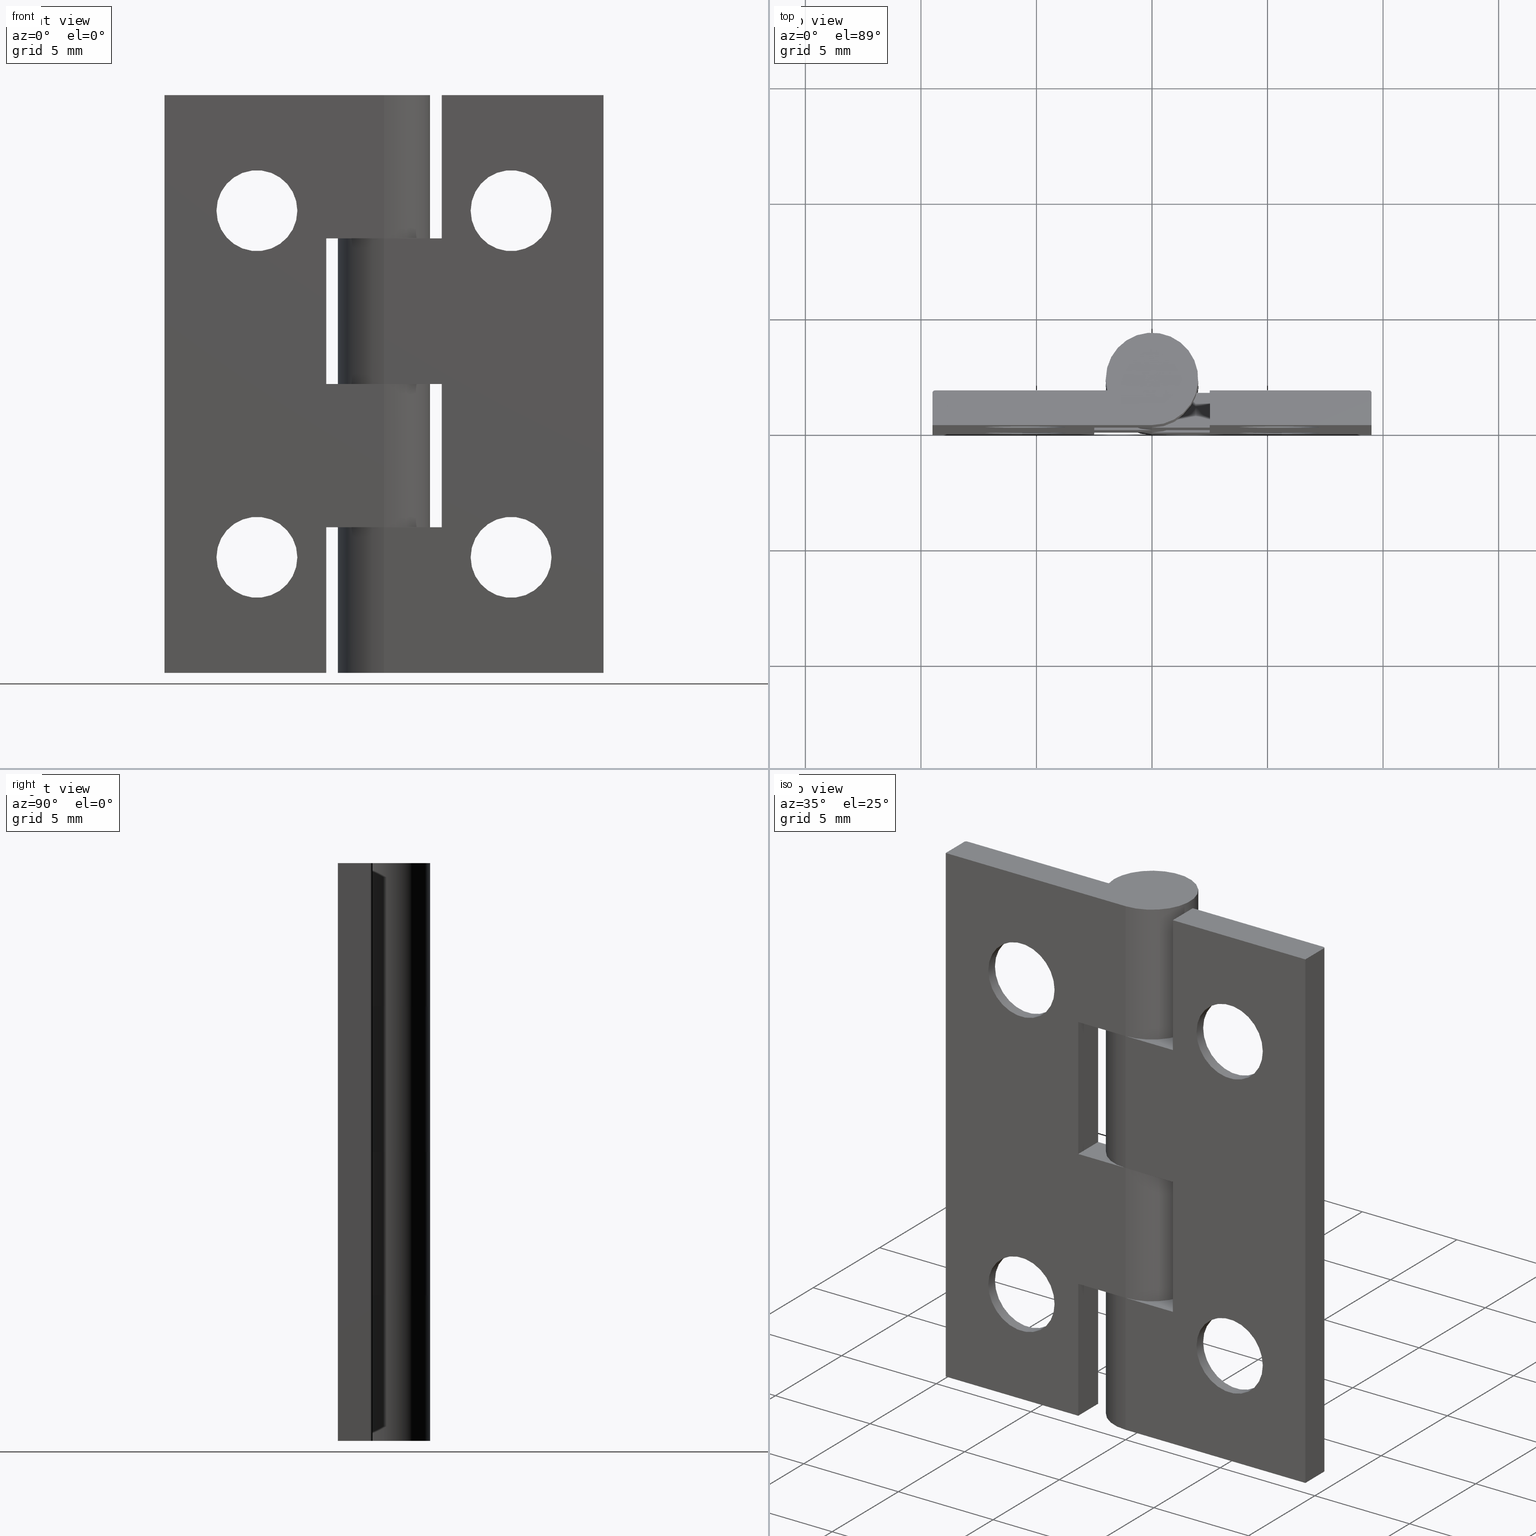
[diagram: canonical four-view strip — front | top / right | iso, engineering-drawing reading convention]
A machine part, canonical four-view strip (front | top / right | iso — engineering-drawing reading convention). The complete STEP part file that produces these views, byte-faithful:
ISO-10303-21;
HEADER;
/* Generated by software containing ST-Developer
 * from STEP Tools, Inc. (www.steptools.com) 
 */

FILE_DESCRIPTION(
/* description */ (''),
/* implementation_level */ '2;1');

FILE_NAME(
/* name */ '\\\\SYNOLOGYNAS\\web\\db2\\HB2519-15\\\X2\B3C4BA74\X0\\\HB
2519-15.stp',
/* time_stamp */ '2024-06-21T09:51:55+09:00',
/* author */ ('user'),
/* organization */ (''),
/* preprocessor_version */ 'ST-DEVELOPER v15.6',
/* originating_system */ 'Autodesk Inventor 2015',
/* authorisation */ '');

FILE_SCHEMA (('AUTOMOTIVE_DESIGN { 1 0 10303 214 3 1 1 }'));
ENDSEC;

DATA;
#10=MECHANICAL_DESIGN_GEOMETRIC_PRESENTATION_REPRESENTATION('',(#31,#29,
#30),#1243);
#11=ITEM_DEFINED_TRANSFORMATION($,$,#732,#811);
#12=ITEM_DEFINED_TRANSFORMATION($,$,#768,#812);
#13=ITEM_DEFINED_TRANSFORMATION($,$,#804,#813);
#14=(
REPRESENTATION_RELATIONSHIP($,$,#1261,#1264)
REPRESENTATION_RELATIONSHIP_WITH_TRANSFORMATION(#11)
SHAPE_REPRESENTATION_RELATIONSHIP()
);
#15=(
REPRESENTATION_RELATIONSHIP($,$,#1262,#1264)
REPRESENTATION_RELATIONSHIP_WITH_TRANSFORMATION(#12)
SHAPE_REPRESENTATION_RELATIONSHIP()
);
#16=(
REPRESENTATION_RELATIONSHIP($,$,#1263,#1264)
REPRESENTATION_RELATIONSHIP_WITH_TRANSFORMATION(#13)
SHAPE_REPRESENTATION_RELATIONSHIP()
);
#17=CONTEXT_DEPENDENT_SHAPE_REPRESENTATION(#14,#1258);
#18=CONTEXT_DEPENDENT_SHAPE_REPRESENTATION(#15,#1259);
#19=CONTEXT_DEPENDENT_SHAPE_REPRESENTATION(#16,#1260);
#20=NEXT_ASSEMBLY_USAGE_OCCURRENCE('HB2519-15_L:1',$,$,#1269,#1266,$);
#21=NEXT_ASSEMBLY_USAGE_OCCURRENCE('HB2519-15_R:1',$,$,#1269,#1267,$);
#22=NEXT_ASSEMBLY_USAGE_OCCURRENCE('HB2519-15_RING:1',$,$,#1269,#1268,$);
#23=SHAPE_REPRESENTATION_RELATIONSHIP('SRR','None',#1261,#26);
#24=SHAPE_REPRESENTATION_RELATIONSHIP('SRR','None',#1262,#27);
#25=SHAPE_REPRESENTATION_RELATIONSHIP('SRR','None',#1263,#28);
#26=ADVANCED_BREP_SHAPE_REPRESENTATION($,(#32),#1239);
#27=ADVANCED_BREP_SHAPE_REPRESENTATION($,(#33),#1240);
#28=ADVANCED_BREP_SHAPE_REPRESENTATION($,(#34),#1241);
#29=STYLED_ITEM('',(#1285),#32);
#30=STYLED_ITEM('',(#1286),#33);
#31=STYLED_ITEM('',(#1287),#34);
#32=MANIFOLD_SOLID_BREP('\X2\C194B9ACB4DC\X0\1',#729);
#33=MANIFOLD_SOLID_BREP('\X2\C194B9ACB4DC\X0\1',#730);
#34=MANIFOLD_SOLID_BREP('\X2\C194B9ACB4DC\X0\1',#731);
#35=CONICAL_SURFACE('',#755,2.25,45.);
#36=CONICAL_SURFACE('',#759,2.25,45.);
#37=CONICAL_SURFACE('',#794,2.25,45.);
#38=CONICAL_SURFACE('',#797,2.25,45.);
#39=CYLINDRICAL_SURFACE('',#747,2.);
#40=CYLINDRICAL_SURFACE('',#749,2.);
#41=CYLINDRICAL_SURFACE('',#750,0.75);
#42=CYLINDRICAL_SURFACE('',#751,0.1);
#43=CYLINDRICAL_SURFACE('',#757,1.75);
#44=CYLINDRICAL_SURFACE('',#761,1.75);
#45=CYLINDRICAL_SURFACE('',#763,0.75);
#46=CYLINDRICAL_SURFACE('',#769,0.1);
#47=CYLINDRICAL_SURFACE('',#788,2.);
#48=CYLINDRICAL_SURFACE('',#793,0.75);
#49=CYLINDRICAL_SURFACE('',#796,1.75);
#50=CYLINDRICAL_SURFACE('',#799,1.75);
#51=CYLINDRICAL_SURFACE('',#800,0.75);
#52=CYLINDRICAL_SURFACE('',#803,2.);
#53=CYLINDRICAL_SURFACE('',#807,0.75);
#54=FACE_BOUND('',#160,.T.);
#55=FACE_BOUND('',#162,.T.);
#56=FACE_BOUND('',#164,.T.);
#57=FACE_BOUND('',#167,.T.);
#58=FACE_BOUND('',#168,.T.);
#59=FACE_BOUND('',#172,.T.);
#60=FACE_BOUND('',#176,.T.);
#61=FACE_BOUND('',#178,.T.);
#62=FACE_BOUND('',#180,.T.);
#63=FACE_BOUND('',#182,.T.);
#64=FACE_BOUND('',#184,.T.);
#65=FACE_BOUND('',#186,.T.);
#66=FACE_BOUND('',#187,.T.);
#67=FACE_BOUND('',#190,.T.);
#68=FACE_BOUND('',#196,.T.);
#69=FACE_BOUND('',#198,.T.);
#70=FACE_BOUND('',#200,.T.);
#71=FACE_BOUND('',#203,.T.);
#72=FACE_BOUND('',#204,.T.);
#73=FACE_BOUND('',#207,.T.);
#74=FACE_BOUND('',#208,.T.);
#75=FACE_BOUND('',#210,.T.);
#76=FACE_BOUND('',#212,.T.);
#77=FACE_BOUND('',#214,.T.);
#78=FACE_BOUND('',#216,.T.);
#79=FACE_BOUND('',#218,.T.);
#80=FACE_BOUND('',#220,.T.);
#81=FACE_BOUND('',#222,.T.);
#82=FACE_BOUND('',#226,.T.);
#83=CIRCLE('',#735,2.);
#84=CIRCLE('',#736,0.75);
#85=CIRCLE('',#738,2.);
#86=CIRCLE('',#739,0.75);
#87=CIRCLE('',#741,2.);
#88=CIRCLE('',#742,0.75);
#89=CIRCLE('',#745,2.75);
#90=CIRCLE('',#746,2.75);
#91=CIRCLE('',#748,2.);
#92=CIRCLE('',#752,0.1);
#93=CIRCLE('',#753,0.1);
#94=CIRCLE('',#756,1.75);
#95=CIRCLE('',#758,1.75);
#96=CIRCLE('',#760,1.75);
#97=CIRCLE('',#762,1.75);
#98=CIRCLE('',#764,0.75);
#99=CIRCLE('',#770,0.1);
#100=CIRCLE('',#771,0.1);
#101=CIRCLE('',#776,2.);
#102=CIRCLE('',#777,0.75);
#103=CIRCLE('',#779,2.);
#104=CIRCLE('',#780,0.75);
#105=CIRCLE('',#782,2.);
#106=CIRCLE('',#783,0.75);
#107=CIRCLE('',#786,2.75);
#108=CIRCLE('',#787,2.75);
#109=CIRCLE('',#789,2.);
#110=CIRCLE('',#791,1.75);
#111=CIRCLE('',#792,1.75);
#112=CIRCLE('',#795,1.75);
#113=CIRCLE('',#798,1.75);
#114=CIRCLE('',#801,0.75);
#115=CIRCLE('',#806,0.75);
#116=CIRCLE('',#808,0.75);
#117=FACE_OUTER_BOUND('',#158,.T.);
#118=FACE_OUTER_BOUND('',#159,.T.);
#119=FACE_OUTER_BOUND('',#161,.T.);
#120=FACE_OUTER_BOUND('',#163,.T.);
#121=FACE_OUTER_BOUND('',#165,.T.);
#122=FACE_OUTER_BOUND('',#166,.T.);
#123=FACE_OUTER_BOUND('',#169,.T.);
#124=FACE_OUTER_BOUND('',#170,.T.);
#125=FACE_OUTER_BOUND('',#171,.T.);
#126=FACE_OUTER_BOUND('',#173,.T.);
#127=FACE_OUTER_BOUND('',#174,.T.);
#128=FACE_OUTER_BOUND('',#175,.T.);
#129=FACE_OUTER_BOUND('',#177,.T.);
#130=FACE_OUTER_BOUND('',#179,.T.);
#131=FACE_OUTER_BOUND('',#181,.T.);
#132=FACE_OUTER_BOUND('',#183,.T.);
#133=FACE_OUTER_BOUND('',#185,.T.);
#134=FACE_OUTER_BOUND('',#188,.T.);
#135=FACE_OUTER_BOUND('',#189,.T.);
#136=FACE_OUTER_BOUND('',#191,.T.);
#137=FACE_OUTER_BOUND('',#192,.T.);
#138=FACE_OUTER_BOUND('',#193,.T.);
#139=FACE_OUTER_BOUND('',#194,.T.);
#140=FACE_OUTER_BOUND('',#195,.T.);
#141=FACE_OUTER_BOUND('',#197,.T.);
#142=FACE_OUTER_BOUND('',#199,.T.);
#143=FACE_OUTER_BOUND('',#201,.T.);
#144=FACE_OUTER_BOUND('',#202,.T.);
#145=FACE_OUTER_BOUND('',#205,.T.);
#146=FACE_OUTER_BOUND('',#206,.T.);
#147=FACE_OUTER_BOUND('',#209,.T.);
#148=FACE_OUTER_BOUND('',#211,.T.);
#149=FACE_OUTER_BOUND('',#213,.T.);
#150=FACE_OUTER_BOUND('',#215,.T.);
#151=FACE_OUTER_BOUND('',#217,.T.);
#152=FACE_OUTER_BOUND('',#219,.T.);
#153=FACE_OUTER_BOUND('',#221,.T.);
#154=FACE_OUTER_BOUND('',#223,.T.);
#155=FACE_OUTER_BOUND('',#224,.T.);
#156=FACE_OUTER_BOUND('',#225,.T.);
#157=FACE_OUTER_BOUND('',#227,.T.);
#158=EDGE_LOOP('',(#490,#491,#492,#493));
#159=EDGE_LOOP('',(#494,#495,#496,#497));
#160=EDGE_LOOP('',(#498));
#161=EDGE_LOOP('',(#499,#500,#501,#502));
#162=EDGE_LOOP('',(#503));
#163=EDGE_LOOP('',(#504,#505,#506,#507));
#164=EDGE_LOOP('',(#508));
#165=EDGE_LOOP('',(#509,#510,#511,#512));
#166=EDGE_LOOP('',(#513,#514,#515,#516,#517,#518,#519,#520,#521,#522));
#167=EDGE_LOOP('',(#523));
#168=EDGE_LOOP('',(#524));
#169=EDGE_LOOP('',(#525,#526,#527,#528));
#170=EDGE_LOOP('',(#529,#530,#531,#532));
#171=EDGE_LOOP('',(#533));
#172=EDGE_LOOP('',(#534));
#173=EDGE_LOOP('',(#535,#536,#537,#538));
#174=EDGE_LOOP('',(#539,#540,#541,#542,#543));
#175=EDGE_LOOP('',(#544));
#176=EDGE_LOOP('',(#545));
#177=EDGE_LOOP('',(#546));
#178=EDGE_LOOP('',(#547));
#179=EDGE_LOOP('',(#548));
#180=EDGE_LOOP('',(#549));
#181=EDGE_LOOP('',(#550));
#182=EDGE_LOOP('',(#551));
#183=EDGE_LOOP('',(#552));
#184=EDGE_LOOP('',(#553));
#185=EDGE_LOOP('',(#554,#555,#556,#557,#558,#559,#560,#561,#562,#563));
#186=EDGE_LOOP('',(#564));
#187=EDGE_LOOP('',(#565));
#188=EDGE_LOOP('',(#566,#567,#568,#569));
#189=EDGE_LOOP('',(#570,#571,#572,#573,#574));
#190=EDGE_LOOP('',(#575));
#191=EDGE_LOOP('',(#576,#577,#578,#579));
#192=EDGE_LOOP('',(#580,#581,#582,#583));
#193=EDGE_LOOP('',(#584,#585,#586,#587,#588));
#194=EDGE_LOOP('',(#589,#590,#591,#592));
#195=EDGE_LOOP('',(#593,#594,#595,#596));
#196=EDGE_LOOP('',(#597));
#197=EDGE_LOOP('',(#598,#599,#600,#601));
#198=EDGE_LOOP('',(#602));
#199=EDGE_LOOP('',(#603,#604,#605,#606));
#200=EDGE_LOOP('',(#607));
#201=EDGE_LOOP('',(#608,#609,#610,#611));
#202=EDGE_LOOP('',(#612,#613,#614,#615,#616,#617,#618,#619,#620,#621));
#203=EDGE_LOOP('',(#622));
#204=EDGE_LOOP('',(#623));
#205=EDGE_LOOP('',(#624,#625,#626,#627));
#206=EDGE_LOOP('',(#628,#629,#630,#631,#632,#633,#634,#635,#636,#637));
#207=EDGE_LOOP('',(#638));
#208=EDGE_LOOP('',(#639));
#209=EDGE_LOOP('',(#640));
#210=EDGE_LOOP('',(#641));
#211=EDGE_LOOP('',(#642));
#212=EDGE_LOOP('',(#643));
#213=EDGE_LOOP('',(#644));
#214=EDGE_LOOP('',(#645));
#215=EDGE_LOOP('',(#646));
#216=EDGE_LOOP('',(#647));
#217=EDGE_LOOP('',(#648));
#218=EDGE_LOOP('',(#649));
#219=EDGE_LOOP('',(#650));
#220=EDGE_LOOP('',(#651));
#221=EDGE_LOOP('',(#652,#653,#654,#655,#656));
#222=EDGE_LOOP('',(#657));
#223=EDGE_LOOP('',(#658,#659,#660,#661));
#224=EDGE_LOOP('',(#662));
#225=EDGE_LOOP('',(#663));
#226=EDGE_LOOP('',(#664));
#227=EDGE_LOOP('',(#665));
#228=LINE('',#1036,#282);
#229=LINE('',#1038,#283);
#230=LINE('',#1040,#284);
#231=LINE('',#1041,#285);
#232=LINE('',#1046,#286);
#233=LINE('',#1047,#287);
#234=LINE('',#1053,#288);
#235=LINE('',#1055,#289);
#236=LINE('',#1057,#290);
#237=LINE('',#1064,#291);
#238=LINE('',#1068,#292);
#239=LINE('',#1069,#293);
#240=LINE('',#1073,#294);
#241=LINE('',#1074,#295);
#242=LINE('',#1077,#296);
#243=LINE('',#1079,#297);
#244=LINE('',#1081,#298);
#245=LINE('',#1082,#299);
#246=LINE('',#1083,#300);
#247=LINE('',#1091,#301);
#248=LINE('',#1093,#302);
#249=LINE('',#1100,#303);
#250=LINE('',#1103,#304);
#251=LINE('',#1104,#305);
#252=LINE('',#1122,#306);
#253=LINE('',#1123,#307);
#254=LINE('',#1125,#308);
#255=LINE('',#1133,#309);
#256=LINE('',#1136,#310);
#257=LINE('',#1139,#311);
#258=LINE('',#1141,#312);
#259=LINE('',#1142,#313);
#260=LINE('',#1145,#314);
#261=LINE('',#1147,#315);
#262=LINE('',#1148,#316);
#263=LINE('',#1151,#317);
#264=LINE('',#1153,#318);
#265=LINE('',#1154,#319);
#266=LINE('',#1157,#320);
#267=LINE('',#1160,#321);
#268=LINE('',#1166,#322);
#269=LINE('',#1168,#323);
#270=LINE('',#1170,#324);
#271=LINE('',#1177,#325);
#272=LINE('',#1181,#326);
#273=LINE('',#1182,#327);
#274=LINE('',#1186,#328);
#275=LINE('',#1187,#329);
#276=LINE('',#1190,#330);
#277=LINE('',#1191,#331);
#278=LINE('',#1192,#332);
#279=LINE('',#1200,#333);
#280=LINE('',#1202,#334);
#281=LINE('',#1203,#335);
#282=VECTOR('',#818,6.3);
#283=VECTOR('',#819,1.5);
#284=VECTOR('',#820,6.30000000000001);
#285=VECTOR('',#821,1.5);
#286=VECTOR('',#826,2.5);
#287=VECTOR('',#827,0.563508326896291);
#288=VECTOR('',#832,0.563508326896296);
#289=VECTOR('',#833,1.5);
#290=VECTOR('',#834,2.5);
#291=VECTOR('',#841,0.563508326896294);
#292=VECTOR('',#844,2.5);
#293=VECTOR('',#845,1.5);
#294=VECTOR('',#850,6.3);
#295=VECTOR('',#851,6.3);
#296=VECTOR('',#854,6.9);
#297=VECTOR('',#855,25.);
#298=VECTOR('',#856,7.46350832689629);
#299=VECTOR('',#857,6.2);
#300=VECTOR('',#858,6.2);
#301=VECTOR('',#867,6.2);
#302=VECTOR('',#870,6.2);
#303=VECTOR('',#879,25.);
#304=VECTOR('',#882,7.);
#305=VECTOR('',#883,1.4);
#306=VECTOR('',#906,9.5);
#307=VECTOR('',#907,25.);
#308=VECTOR('',#910,1.4);
#309=VECTOR('',#919,25.);
#310=VECTOR('',#922,25.);
#311=VECTOR('',#925,1.4);
#312=VECTOR('',#926,25.);
#313=VECTOR('',#927,1.4);
#314=VECTOR('',#930,6.9);
#315=VECTOR('',#931,1.5);
#316=VECTOR('',#932,7.);
#317=VECTOR('',#935,6.2);
#318=VECTOR('',#936,1.5);
#319=VECTOR('',#937,6.2);
#320=VECTOR('',#940,0.563508326896295);
#321=VECTOR('',#943,2.5);
#322=VECTOR('',#948,0.563508326896294);
#323=VECTOR('',#949,1.5);
#324=VECTOR('',#950,2.5);
#325=VECTOR('',#957,0.563508326896293);
#326=VECTOR('',#960,2.5);
#327=VECTOR('',#961,1.5);
#328=VECTOR('',#966,6.2);
#329=VECTOR('',#967,6.2);
#330=VECTOR('',#970,7.4635083268963);
#331=VECTOR('',#971,6.3);
#332=VECTOR('',#972,6.3);
#333=VECTOR('',#981,6.3);
#334=VECTOR('',#984,6.3);
#335=VECTOR('',#985,9.5);
#336=VERTEX_POINT('',#1034);
#337=VERTEX_POINT('',#1035);
#338=VERTEX_POINT('',#1037);
#339=VERTEX_POINT('',#1039);
#340=VERTEX_POINT('',#1043);
#341=VERTEX_POINT('',#1044);
#342=VERTEX_POINT('',#1048);
#343=VERTEX_POINT('',#1051);
#344=VERTEX_POINT('',#1052);
#345=VERTEX_POINT('',#1054);
#346=VERTEX_POINT('',#1056);
#347=VERTEX_POINT('',#1059);
#348=VERTEX_POINT('',#1062);
#349=VERTEX_POINT('',#1063);
#350=VERTEX_POINT('',#1065);
#351=VERTEX_POINT('',#1067);
#352=VERTEX_POINT('',#1070);
#353=VERTEX_POINT('',#1076);
#354=VERTEX_POINT('',#1078);
#355=VERTEX_POINT('',#1080);
#356=VERTEX_POINT('',#1084);
#357=VERTEX_POINT('',#1086);
#358=VERTEX_POINT('',#1089);
#359=VERTEX_POINT('',#1096);
#360=VERTEX_POINT('',#1098);
#361=VERTEX_POINT('',#1102);
#362=VERTEX_POINT('',#1106);
#363=VERTEX_POINT('',#1109);
#364=VERTEX_POINT('',#1112);
#365=VERTEX_POINT('',#1115);
#366=VERTEX_POINT('',#1118);
#367=VERTEX_POINT('',#1121);
#368=VERTEX_POINT('',#1129);
#369=VERTEX_POINT('',#1130);
#370=VERTEX_POINT('',#1132);
#371=VERTEX_POINT('',#1134);
#372=VERTEX_POINT('',#1138);
#373=VERTEX_POINT('',#1140);
#374=VERTEX_POINT('',#1144);
#375=VERTEX_POINT('',#1146);
#376=VERTEX_POINT('',#1150);
#377=VERTEX_POINT('',#1152);
#378=VERTEX_POINT('',#1156);
#379=VERTEX_POINT('',#1158);
#380=VERTEX_POINT('',#1161);
#381=VERTEX_POINT('',#1164);
#382=VERTEX_POINT('',#1165);
#383=VERTEX_POINT('',#1167);
#384=VERTEX_POINT('',#1169);
#385=VERTEX_POINT('',#1172);
#386=VERTEX_POINT('',#1175);
#387=VERTEX_POINT('',#1176);
#388=VERTEX_POINT('',#1178);
#389=VERTEX_POINT('',#1180);
#390=VERTEX_POINT('',#1183);
#391=VERTEX_POINT('',#1189);
#392=VERTEX_POINT('',#1193);
#393=VERTEX_POINT('',#1195);
#394=VERTEX_POINT('',#1198);
#395=VERTEX_POINT('',#1204);
#396=VERTEX_POINT('',#1206);
#397=VERTEX_POINT('',#1210);
#398=VERTEX_POINT('',#1214);
#399=VERTEX_POINT('',#1218);
#400=VERTEX_POINT('',#1224);
#401=VERTEX_POINT('',#1227);
#402=EDGE_CURVE('',#336,#337,#228,.T.);
#403=EDGE_CURVE('',#338,#336,#229,.T.);
#404=EDGE_CURVE('',#339,#338,#230,.T.);
#405=EDGE_CURVE('',#337,#339,#231,.T.);
#406=EDGE_CURVE('',#340,#341,#83,.T.);
#407=EDGE_CURVE('',#338,#340,#232,.T.);
#408=EDGE_CURVE('',#341,#336,#233,.T.);
#409=EDGE_CURVE('',#342,#342,#84,.T.);
#410=EDGE_CURVE('',#343,#344,#234,.T.);
#411=EDGE_CURVE('',#345,#343,#235,.T.);
#412=EDGE_CURVE('',#346,#345,#236,.T.);
#413=EDGE_CURVE('',#344,#346,#85,.T.);
#414=EDGE_CURVE('',#347,#347,#86,.T.);
#415=EDGE_CURVE('',#348,#349,#237,.T.);
#416=EDGE_CURVE('',#350,#348,#87,.T.);
#417=EDGE_CURVE('',#351,#350,#238,.T.);
#418=EDGE_CURVE('',#351,#349,#239,.T.);
#419=EDGE_CURVE('',#352,#352,#88,.T.);
#420=EDGE_CURVE('',#349,#343,#240,.T.);
#421=EDGE_CURVE('',#345,#351,#241,.T.);
#422=EDGE_CURVE('',#353,#337,#242,.T.);
#423=EDGE_CURVE('',#354,#353,#243,.T.);
#424=EDGE_CURVE('',#355,#354,#244,.T.);
#425=EDGE_CURVE('',#348,#355,#245,.T.);
#426=EDGE_CURVE('',#341,#344,#246,.T.);
#427=EDGE_CURVE('',#356,#356,#89,.T.);
#428=EDGE_CURVE('',#357,#357,#90,.T.);
#429=EDGE_CURVE('',#358,#355,#91,.T.);
#430=EDGE_CURVE('',#350,#358,#247,.T.);
#431=EDGE_CURVE('',#340,#346,#248,.T.);
#432=EDGE_CURVE('',#359,#354,#92,.T.);
#433=EDGE_CURVE('',#353,#360,#93,.T.);
#434=EDGE_CURVE('',#360,#359,#249,.T.);
#435=EDGE_CURVE('',#339,#361,#250,.T.);
#436=EDGE_CURVE('',#361,#360,#251,.T.);
#437=EDGE_CURVE('',#362,#362,#94,.T.);
#438=EDGE_CURVE('',#363,#363,#95,.T.);
#439=EDGE_CURVE('',#364,#364,#96,.T.);
#440=EDGE_CURVE('',#365,#365,#97,.T.);
#441=EDGE_CURVE('',#366,#366,#98,.T.);
#442=EDGE_CURVE('',#367,#358,#252,.T.);
#443=EDGE_CURVE('',#361,#367,#253,.T.);
#444=EDGE_CURVE('',#359,#367,#254,.T.);
#445=EDGE_CURVE('',#368,#369,#99,.T.);
#446=EDGE_CURVE('',#369,#370,#255,.T.);
#447=EDGE_CURVE('',#370,#371,#100,.T.);
#448=EDGE_CURVE('',#371,#368,#256,.T.);
#449=EDGE_CURVE('',#372,#369,#257,.T.);
#450=EDGE_CURVE('',#373,#372,#258,.T.);
#451=EDGE_CURVE('',#370,#373,#259,.T.);
#452=EDGE_CURVE('',#368,#374,#260,.T.);
#453=EDGE_CURVE('',#374,#375,#261,.T.);
#454=EDGE_CURVE('',#375,#372,#262,.T.);
#455=EDGE_CURVE('',#376,#374,#263,.T.);
#456=EDGE_CURVE('',#377,#376,#264,.T.);
#457=EDGE_CURVE('',#375,#377,#265,.T.);
#458=EDGE_CURVE('',#378,#376,#266,.T.);
#459=EDGE_CURVE('',#379,#378,#101,.T.);
#460=EDGE_CURVE('',#377,#379,#267,.T.);
#461=EDGE_CURVE('',#380,#380,#102,.T.);
#462=EDGE_CURVE('',#381,#382,#268,.T.);
#463=EDGE_CURVE('',#383,#381,#269,.T.);
#464=EDGE_CURVE('',#384,#383,#270,.T.);
#465=EDGE_CURVE('',#382,#384,#103,.T.);
#466=EDGE_CURVE('',#385,#385,#104,.T.);
#467=EDGE_CURVE('',#386,#387,#271,.T.);
#468=EDGE_CURVE('',#388,#386,#105,.T.);
#469=EDGE_CURVE('',#389,#388,#272,.T.);
#470=EDGE_CURVE('',#389,#387,#273,.T.);
#471=EDGE_CURVE('',#390,#390,#106,.T.);
#472=EDGE_CURVE('',#387,#381,#274,.T.);
#473=EDGE_CURVE('',#383,#389,#275,.T.);
#474=EDGE_CURVE('',#391,#371,#276,.T.);
#475=EDGE_CURVE('',#386,#391,#277,.T.);
#476=EDGE_CURVE('',#378,#382,#278,.T.);
#477=EDGE_CURVE('',#392,#392,#107,.T.);
#478=EDGE_CURVE('',#393,#393,#108,.T.);
#479=EDGE_CURVE('',#394,#391,#109,.T.);
#480=EDGE_CURVE('',#394,#388,#279,.T.);
#481=EDGE_CURVE('',#384,#379,#280,.T.);
#482=EDGE_CURVE('',#373,#394,#281,.T.);
#483=EDGE_CURVE('',#395,#395,#110,.T.);
#484=EDGE_CURVE('',#396,#396,#111,.T.);
#485=EDGE_CURVE('',#397,#397,#112,.T.);
#486=EDGE_CURVE('',#398,#398,#113,.T.);
#487=EDGE_CURVE('',#399,#399,#114,.T.);
#488=EDGE_CURVE('',#400,#400,#115,.T.);
#489=EDGE_CURVE('',#401,#401,#116,.T.);
#490=ORIENTED_EDGE('',*,*,#402,.F.);
#491=ORIENTED_EDGE('',*,*,#403,.F.);
#492=ORIENTED_EDGE('',*,*,#404,.F.);
#493=ORIENTED_EDGE('',*,*,#405,.F.);
#494=ORIENTED_EDGE('',*,*,#406,.F.);
#495=ORIENTED_EDGE('',*,*,#407,.F.);
#496=ORIENTED_EDGE('',*,*,#403,.T.);
#497=ORIENTED_EDGE('',*,*,#408,.F.);
#498=ORIENTED_EDGE('',*,*,#409,.F.);
#499=ORIENTED_EDGE('',*,*,#410,.F.);
#500=ORIENTED_EDGE('',*,*,#411,.F.);
#501=ORIENTED_EDGE('',*,*,#412,.F.);
#502=ORIENTED_EDGE('',*,*,#413,.F.);
#503=ORIENTED_EDGE('',*,*,#414,.F.);
#504=ORIENTED_EDGE('',*,*,#415,.F.);
#505=ORIENTED_EDGE('',*,*,#416,.F.);
#506=ORIENTED_EDGE('',*,*,#417,.F.);
#507=ORIENTED_EDGE('',*,*,#418,.T.);
#508=ORIENTED_EDGE('',*,*,#419,.F.);
#509=ORIENTED_EDGE('',*,*,#420,.F.);
#510=ORIENTED_EDGE('',*,*,#418,.F.);
#511=ORIENTED_EDGE('',*,*,#421,.F.);
#512=ORIENTED_EDGE('',*,*,#411,.T.);
#513=ORIENTED_EDGE('',*,*,#408,.T.);
#514=ORIENTED_EDGE('',*,*,#402,.T.);
#515=ORIENTED_EDGE('',*,*,#422,.F.);
#516=ORIENTED_EDGE('',*,*,#423,.F.);
#517=ORIENTED_EDGE('',*,*,#424,.F.);
#518=ORIENTED_EDGE('',*,*,#425,.F.);
#519=ORIENTED_EDGE('',*,*,#415,.T.);
#520=ORIENTED_EDGE('',*,*,#420,.T.);
#521=ORIENTED_EDGE('',*,*,#410,.T.);
#522=ORIENTED_EDGE('',*,*,#426,.F.);
#523=ORIENTED_EDGE('',*,*,#427,.T.);
#524=ORIENTED_EDGE('',*,*,#428,.T.);
#525=ORIENTED_EDGE('',*,*,#416,.T.);
#526=ORIENTED_EDGE('',*,*,#425,.T.);
#527=ORIENTED_EDGE('',*,*,#429,.F.);
#528=ORIENTED_EDGE('',*,*,#430,.F.);
#529=ORIENTED_EDGE('',*,*,#406,.T.);
#530=ORIENTED_EDGE('',*,*,#426,.T.);
#531=ORIENTED_EDGE('',*,*,#413,.T.);
#532=ORIENTED_EDGE('',*,*,#431,.F.);
#533=ORIENTED_EDGE('',*,*,#414,.T.);
#534=ORIENTED_EDGE('',*,*,#409,.T.);
#535=ORIENTED_EDGE('',*,*,#432,.T.);
#536=ORIENTED_EDGE('',*,*,#423,.T.);
#537=ORIENTED_EDGE('',*,*,#433,.T.);
#538=ORIENTED_EDGE('',*,*,#434,.T.);
#539=ORIENTED_EDGE('',*,*,#405,.T.);
#540=ORIENTED_EDGE('',*,*,#435,.T.);
#541=ORIENTED_EDGE('',*,*,#436,.T.);
#542=ORIENTED_EDGE('',*,*,#433,.F.);
#543=ORIENTED_EDGE('',*,*,#422,.T.);
#544=ORIENTED_EDGE('',*,*,#427,.F.);
#545=ORIENTED_EDGE('',*,*,#437,.F.);
#546=ORIENTED_EDGE('',*,*,#438,.F.);
#547=ORIENTED_EDGE('',*,*,#437,.T.);
#548=ORIENTED_EDGE('',*,*,#428,.F.);
#549=ORIENTED_EDGE('',*,*,#439,.F.);
#550=ORIENTED_EDGE('',*,*,#440,.F.);
#551=ORIENTED_EDGE('',*,*,#439,.T.);
#552=ORIENTED_EDGE('',*,*,#419,.T.);
#553=ORIENTED_EDGE('',*,*,#441,.F.);
#554=ORIENTED_EDGE('',*,*,#407,.T.);
#555=ORIENTED_EDGE('',*,*,#431,.T.);
#556=ORIENTED_EDGE('',*,*,#412,.T.);
#557=ORIENTED_EDGE('',*,*,#421,.T.);
#558=ORIENTED_EDGE('',*,*,#417,.T.);
#559=ORIENTED_EDGE('',*,*,#430,.T.);
#560=ORIENTED_EDGE('',*,*,#442,.F.);
#561=ORIENTED_EDGE('',*,*,#443,.F.);
#562=ORIENTED_EDGE('',*,*,#435,.F.);
#563=ORIENTED_EDGE('',*,*,#404,.T.);
#564=ORIENTED_EDGE('',*,*,#438,.T.);
#565=ORIENTED_EDGE('',*,*,#440,.T.);
#566=ORIENTED_EDGE('',*,*,#434,.F.);
#567=ORIENTED_EDGE('',*,*,#436,.F.);
#568=ORIENTED_EDGE('',*,*,#443,.T.);
#569=ORIENTED_EDGE('',*,*,#444,.F.);
#570=ORIENTED_EDGE('',*,*,#432,.F.);
#571=ORIENTED_EDGE('',*,*,#444,.T.);
#572=ORIENTED_EDGE('',*,*,#442,.T.);
#573=ORIENTED_EDGE('',*,*,#429,.T.);
#574=ORIENTED_EDGE('',*,*,#424,.T.);
#575=ORIENTED_EDGE('',*,*,#441,.T.);
#576=ORIENTED_EDGE('',*,*,#445,.T.);
#577=ORIENTED_EDGE('',*,*,#446,.T.);
#578=ORIENTED_EDGE('',*,*,#447,.T.);
#579=ORIENTED_EDGE('',*,*,#448,.T.);
#580=ORIENTED_EDGE('',*,*,#446,.F.);
#581=ORIENTED_EDGE('',*,*,#449,.F.);
#582=ORIENTED_EDGE('',*,*,#450,.F.);
#583=ORIENTED_EDGE('',*,*,#451,.F.);
#584=ORIENTED_EDGE('',*,*,#445,.F.);
#585=ORIENTED_EDGE('',*,*,#452,.T.);
#586=ORIENTED_EDGE('',*,*,#453,.T.);
#587=ORIENTED_EDGE('',*,*,#454,.T.);
#588=ORIENTED_EDGE('',*,*,#449,.T.);
#589=ORIENTED_EDGE('',*,*,#455,.F.);
#590=ORIENTED_EDGE('',*,*,#456,.F.);
#591=ORIENTED_EDGE('',*,*,#457,.F.);
#592=ORIENTED_EDGE('',*,*,#453,.F.);
#593=ORIENTED_EDGE('',*,*,#458,.F.);
#594=ORIENTED_EDGE('',*,*,#459,.F.);
#595=ORIENTED_EDGE('',*,*,#460,.F.);
#596=ORIENTED_EDGE('',*,*,#456,.T.);
#597=ORIENTED_EDGE('',*,*,#461,.F.);
#598=ORIENTED_EDGE('',*,*,#462,.F.);
#599=ORIENTED_EDGE('',*,*,#463,.F.);
#600=ORIENTED_EDGE('',*,*,#464,.F.);
#601=ORIENTED_EDGE('',*,*,#465,.F.);
#602=ORIENTED_EDGE('',*,*,#466,.F.);
#603=ORIENTED_EDGE('',*,*,#467,.F.);
#604=ORIENTED_EDGE('',*,*,#468,.F.);
#605=ORIENTED_EDGE('',*,*,#469,.F.);
#606=ORIENTED_EDGE('',*,*,#470,.T.);
#607=ORIENTED_EDGE('',*,*,#471,.F.);
#608=ORIENTED_EDGE('',*,*,#472,.F.);
#609=ORIENTED_EDGE('',*,*,#470,.F.);
#610=ORIENTED_EDGE('',*,*,#473,.F.);
#611=ORIENTED_EDGE('',*,*,#463,.T.);
#612=ORIENTED_EDGE('',*,*,#448,.F.);
#613=ORIENTED_EDGE('',*,*,#474,.F.);
#614=ORIENTED_EDGE('',*,*,#475,.F.);
#615=ORIENTED_EDGE('',*,*,#467,.T.);
#616=ORIENTED_EDGE('',*,*,#472,.T.);
#617=ORIENTED_EDGE('',*,*,#462,.T.);
#618=ORIENTED_EDGE('',*,*,#476,.F.);
#619=ORIENTED_EDGE('',*,*,#458,.T.);
#620=ORIENTED_EDGE('',*,*,#455,.T.);
#621=ORIENTED_EDGE('',*,*,#452,.F.);
#622=ORIENTED_EDGE('',*,*,#477,.T.);
#623=ORIENTED_EDGE('',*,*,#478,.T.);
#624=ORIENTED_EDGE('',*,*,#468,.T.);
#625=ORIENTED_EDGE('',*,*,#475,.T.);
#626=ORIENTED_EDGE('',*,*,#479,.F.);
#627=ORIENTED_EDGE('',*,*,#480,.T.);
#628=ORIENTED_EDGE('',*,*,#457,.T.);
#629=ORIENTED_EDGE('',*,*,#460,.T.);
#630=ORIENTED_EDGE('',*,*,#481,.F.);
#631=ORIENTED_EDGE('',*,*,#464,.T.);
#632=ORIENTED_EDGE('',*,*,#473,.T.);
#633=ORIENTED_EDGE('',*,*,#469,.T.);
#634=ORIENTED_EDGE('',*,*,#480,.F.);
#635=ORIENTED_EDGE('',*,*,#482,.F.);
#636=ORIENTED_EDGE('',*,*,#450,.T.);
#637=ORIENTED_EDGE('',*,*,#454,.F.);
#638=ORIENTED_EDGE('',*,*,#483,.T.);
#639=ORIENTED_EDGE('',*,*,#484,.T.);
#640=ORIENTED_EDGE('',*,*,#466,.T.);
#641=ORIENTED_EDGE('',*,*,#461,.T.);
#642=ORIENTED_EDGE('',*,*,#478,.F.);
#643=ORIENTED_EDGE('',*,*,#485,.F.);
#644=ORIENTED_EDGE('',*,*,#484,.F.);
#645=ORIENTED_EDGE('',*,*,#485,.T.);
#646=ORIENTED_EDGE('',*,*,#477,.F.);
#647=ORIENTED_EDGE('',*,*,#486,.F.);
#648=ORIENTED_EDGE('',*,*,#483,.F.);
#649=ORIENTED_EDGE('',*,*,#486,.T.);
#650=ORIENTED_EDGE('',*,*,#471,.T.);
#651=ORIENTED_EDGE('',*,*,#487,.F.);
#652=ORIENTED_EDGE('',*,*,#447,.F.);
#653=ORIENTED_EDGE('',*,*,#451,.T.);
#654=ORIENTED_EDGE('',*,*,#482,.T.);
#655=ORIENTED_EDGE('',*,*,#479,.T.);
#656=ORIENTED_EDGE('',*,*,#474,.T.);
#657=ORIENTED_EDGE('',*,*,#487,.T.);
#658=ORIENTED_EDGE('',*,*,#459,.T.);
#659=ORIENTED_EDGE('',*,*,#476,.T.);
#660=ORIENTED_EDGE('',*,*,#465,.T.);
#661=ORIENTED_EDGE('',*,*,#481,.T.);
#662=ORIENTED_EDGE('',*,*,#488,.T.);
#663=ORIENTED_EDGE('',*,*,#488,.F.);
#664=ORIENTED_EDGE('',*,*,#489,.F.);
#665=ORIENTED_EDGE('',*,*,#489,.T.);
#666=PLANE('',#733);
#667=PLANE('',#734);
#668=PLANE('',#737);
#669=PLANE('',#740);
#670=PLANE('',#743);
#671=PLANE('',#744);
#672=PLANE('',#754);
#673=PLANE('',#765);
#674=PLANE('',#766);
#675=PLANE('',#767);
#676=PLANE('',#772);
#677=PLANE('',#773);
#678=PLANE('',#774);
#679=PLANE('',#775);
#680=PLANE('',#778);
#681=PLANE('',#781);
#682=PLANE('',#784);
#683=PLANE('',#785);
#684=PLANE('',#790);
#685=PLANE('',#802);
#686=PLANE('',#805);
#687=PLANE('',#809);
#688=ADVANCED_FACE('',(#117),#666,.F.);
#689=ADVANCED_FACE('',(#118,#54),#667,.F.);
#690=ADVANCED_FACE('',(#119,#55),#668,.F.);
#691=ADVANCED_FACE('',(#120,#56),#669,.F.);
#692=ADVANCED_FACE('',(#121),#670,.F.);
#693=ADVANCED_FACE('',(#122,#57,#58),#671,.T.);
#694=ADVANCED_FACE('',(#123),#39,.T.);
#695=ADVANCED_FACE('',(#124),#40,.T.);
#696=ADVANCED_FACE('',(#125,#59),#41,.F.);
#697=ADVANCED_FACE('',(#126),#42,.T.);
#698=ADVANCED_FACE('',(#127),#672,.T.);
#699=ADVANCED_FACE('',(#128,#60),#35,.F.);
#700=ADVANCED_FACE('',(#129,#61),#43,.F.);
#701=ADVANCED_FACE('',(#130,#62),#36,.F.);
#702=ADVANCED_FACE('',(#131,#63),#44,.F.);
#703=ADVANCED_FACE('',(#132,#64),#45,.F.);
#704=ADVANCED_FACE('',(#133,#65,#66),#673,.T.);
#705=ADVANCED_FACE('',(#134),#674,.T.);
#706=ADVANCED_FACE('',(#135,#67),#675,.T.);
#707=ADVANCED_FACE('',(#136),#46,.T.);
#708=ADVANCED_FACE('',(#137),#676,.T.);
#709=ADVANCED_FACE('',(#138),#677,.T.);
#710=ADVANCED_FACE('',(#139),#678,.F.);
#711=ADVANCED_FACE('',(#140,#68),#679,.F.);
#712=ADVANCED_FACE('',(#141,#69),#680,.F.);
#713=ADVANCED_FACE('',(#142,#70),#681,.F.);
#714=ADVANCED_FACE('',(#143),#682,.F.);
#715=ADVANCED_FACE('',(#144,#71,#72),#683,.T.);
#716=ADVANCED_FACE('',(#145),#47,.T.);
#717=ADVANCED_FACE('',(#146,#73,#74),#684,.T.);
#718=ADVANCED_FACE('',(#147,#75),#48,.F.);
#719=ADVANCED_FACE('',(#148,#76),#37,.F.);
#720=ADVANCED_FACE('',(#149,#77),#49,.F.);
#721=ADVANCED_FACE('',(#150,#78),#38,.F.);
#722=ADVANCED_FACE('',(#151,#79),#50,.F.);
#723=ADVANCED_FACE('',(#152,#80),#51,.F.);
#724=ADVANCED_FACE('',(#153,#81),#685,.T.);
#725=ADVANCED_FACE('',(#154),#52,.T.);
#726=ADVANCED_FACE('',(#155),#686,.F.);
#727=ADVANCED_FACE('',(#156,#82),#53,.T.);
#728=ADVANCED_FACE('',(#157),#687,.T.);
#729=CLOSED_SHELL('',(#688,#689,#690,#691,#692,#693,#694,#695,#696,#697,
#698,#699,#700,#701,#702,#703,#704,#705,#706));
#730=CLOSED_SHELL('',(#707,#708,#709,#710,#711,#712,#713,#714,#715,#716,
#717,#718,#719,#720,#721,#722,#723,#724,#725));
#731=CLOSED_SHELL('',(#726,#727,#728));
#732=AXIS2_PLACEMENT_3D('placement',#1032,#814,#815);
#733=AXIS2_PLACEMENT_3D('',#1033,#816,#817);
#734=AXIS2_PLACEMENT_3D('',#1042,#822,#823);
#735=AXIS2_PLACEMENT_3D('',#1045,#824,#825);
#736=AXIS2_PLACEMENT_3D('',#1049,#828,#829);
#737=AXIS2_PLACEMENT_3D('',#1050,#830,#831);
#738=AXIS2_PLACEMENT_3D('',#1058,#835,#836);
#739=AXIS2_PLACEMENT_3D('',#1060,#837,#838);
#740=AXIS2_PLACEMENT_3D('',#1061,#839,#840);
#741=AXIS2_PLACEMENT_3D('',#1066,#842,#843);
#742=AXIS2_PLACEMENT_3D('',#1071,#846,#847);
#743=AXIS2_PLACEMENT_3D('',#1072,#848,#849);
#744=AXIS2_PLACEMENT_3D('',#1075,#852,#853);
#745=AXIS2_PLACEMENT_3D('',#1085,#859,#860);
#746=AXIS2_PLACEMENT_3D('',#1087,#861,#862);
#747=AXIS2_PLACEMENT_3D('',#1088,#863,#864);
#748=AXIS2_PLACEMENT_3D('',#1090,#865,#866);
#749=AXIS2_PLACEMENT_3D('',#1092,#868,#869);
#750=AXIS2_PLACEMENT_3D('',#1094,#871,#872);
#751=AXIS2_PLACEMENT_3D('',#1095,#873,#874);
#752=AXIS2_PLACEMENT_3D('',#1097,#875,#876);
#753=AXIS2_PLACEMENT_3D('',#1099,#877,#878);
#754=AXIS2_PLACEMENT_3D('',#1101,#880,#881);
#755=AXIS2_PLACEMENT_3D('',#1105,#884,#885);
#756=AXIS2_PLACEMENT_3D('',#1107,#886,#887);
#757=AXIS2_PLACEMENT_3D('',#1108,#888,#889);
#758=AXIS2_PLACEMENT_3D('',#1110,#890,#891);
#759=AXIS2_PLACEMENT_3D('',#1111,#892,#893);
#760=AXIS2_PLACEMENT_3D('',#1113,#894,#895);
#761=AXIS2_PLACEMENT_3D('',#1114,#896,#897);
#762=AXIS2_PLACEMENT_3D('',#1116,#898,#899);
#763=AXIS2_PLACEMENT_3D('',#1117,#900,#901);
#764=AXIS2_PLACEMENT_3D('',#1119,#902,#903);
#765=AXIS2_PLACEMENT_3D('',#1120,#904,#905);
#766=AXIS2_PLACEMENT_3D('',#1124,#908,#909);
#767=AXIS2_PLACEMENT_3D('',#1126,#911,#912);
#768=AXIS2_PLACEMENT_3D('placement',#1127,#913,#914);
#769=AXIS2_PLACEMENT_3D('',#1128,#915,#916);
#770=AXIS2_PLACEMENT_3D('',#1131,#917,#918);
#771=AXIS2_PLACEMENT_3D('',#1135,#920,#921);
#772=AXIS2_PLACEMENT_3D('',#1137,#923,#924);
#773=AXIS2_PLACEMENT_3D('',#1143,#928,#929);
#774=AXIS2_PLACEMENT_3D('',#1149,#933,#934);
#775=AXIS2_PLACEMENT_3D('',#1155,#938,#939);
#776=AXIS2_PLACEMENT_3D('',#1159,#941,#942);
#777=AXIS2_PLACEMENT_3D('',#1162,#944,#945);
#778=AXIS2_PLACEMENT_3D('',#1163,#946,#947);
#779=AXIS2_PLACEMENT_3D('',#1171,#951,#952);
#780=AXIS2_PLACEMENT_3D('',#1173,#953,#954);
#781=AXIS2_PLACEMENT_3D('',#1174,#955,#956);
#782=AXIS2_PLACEMENT_3D('',#1179,#958,#959);
#783=AXIS2_PLACEMENT_3D('',#1184,#962,#963);
#784=AXIS2_PLACEMENT_3D('',#1185,#964,#965);
#785=AXIS2_PLACEMENT_3D('',#1188,#968,#969);
#786=AXIS2_PLACEMENT_3D('',#1194,#973,#974);
#787=AXIS2_PLACEMENT_3D('',#1196,#975,#976);
#788=AXIS2_PLACEMENT_3D('',#1197,#977,#978);
#789=AXIS2_PLACEMENT_3D('',#1199,#979,#980);
#790=AXIS2_PLACEMENT_3D('',#1201,#982,#983);
#791=AXIS2_PLACEMENT_3D('',#1205,#986,#987);
#792=AXIS2_PLACEMENT_3D('',#1207,#988,#989);
#793=AXIS2_PLACEMENT_3D('',#1208,#990,#991);
#794=AXIS2_PLACEMENT_3D('',#1209,#992,#993);
#795=AXIS2_PLACEMENT_3D('',#1211,#994,#995);
#796=AXIS2_PLACEMENT_3D('',#1212,#996,#997);
#797=AXIS2_PLACEMENT_3D('',#1213,#998,#999);
#798=AXIS2_PLACEMENT_3D('',#1215,#1000,#1001);
#799=AXIS2_PLACEMENT_3D('',#1216,#1002,#1003);
#800=AXIS2_PLACEMENT_3D('',#1217,#1004,#1005);
#801=AXIS2_PLACEMENT_3D('',#1219,#1006,#1007);
#802=AXIS2_PLACEMENT_3D('',#1220,#1008,#1009);
#803=AXIS2_PLACEMENT_3D('',#1221,#1010,#1011);
#804=AXIS2_PLACEMENT_3D('placement',#1222,#1012,#1013);
#805=AXIS2_PLACEMENT_3D('',#1223,#1014,#1015);
#806=AXIS2_PLACEMENT_3D('',#1225,#1016,#1017);
#807=AXIS2_PLACEMENT_3D('',#1226,#1018,#1019);
#808=AXIS2_PLACEMENT_3D('',#1228,#1020,#1021);
#809=AXIS2_PLACEMENT_3D('',#1229,#1022,#1023);
#810=AXIS2_PLACEMENT_3D('placement',#1230,#1024,#1025);
#811=AXIS2_PLACEMENT_3D('',#1231,#1026,#1027);
#812=AXIS2_PLACEMENT_3D('',#1232,#1028,#1029);
#813=AXIS2_PLACEMENT_3D('',#1233,#1030,#1031);
#814=DIRECTION('axis',(0.,0.,1.));
#815=DIRECTION('refdir',(1.,0.,0.));
#816=DIRECTION('center_axis',(-1.,0.,1.76225876924628E-16));
#817=DIRECTION('ref_axis',(1.77635683940025E-16,0.,1.));
#818=DIRECTION('',(-1.76225876924628E-16,0.,-1.));
#819=DIRECTION('',(0.,1.,0.));
#820=DIRECTION('',(1.76225876924628E-16,2.15814456102681E-32,1.));
#821=DIRECTION('',(0.,-1.,0.));
#822=DIRECTION('center_axis',(-7.40148683083438E-16,0.,1.));
#823=DIRECTION('ref_axis',(1.,0.,7.105427357601E-16));
#824=DIRECTION('center_axis',(-7.40148683083438E-16,0.,1.));
#825=DIRECTION('ref_axis',(-1.,0.,0.));
#826=DIRECTION('',(1.,1.22464679914735E-16,7.40148683083438E-16));
#827=DIRECTION('',(-1.,0.,-7.40148683083438E-16));
#828=DIRECTION('center_axis',(7.40148683083438E-16,0.,-1.));
#829=DIRECTION('ref_axis',(-1.,0.,0.));
#830=DIRECTION('center_axis',(0.,0.,-1.));
#831=DIRECTION('ref_axis',(-1.,0.,0.));
#832=DIRECTION('',(1.,0.,0.));
#833=DIRECTION('',(0.,1.,0.));
#834=DIRECTION('',(-1.,-1.22464679914735E-16,0.));
#835=DIRECTION('center_axis',(0.,0.,-1.));
#836=DIRECTION('ref_axis',(-1.,0.,0.));
#837=DIRECTION('center_axis',(0.,0.,1.));
#838=DIRECTION('ref_axis',(-1.,0.,0.));
#839=DIRECTION('center_axis',(0.,0.,1.));
#840=DIRECTION('ref_axis',(1.,0.,0.));
#841=DIRECTION('',(-1.,0.,0.));
#842=DIRECTION('center_axis',(0.,0.,1.));
#843=DIRECTION('ref_axis',(-1.,0.,0.));
#844=DIRECTION('',(1.,1.22464679914735E-16,0.));
#845=DIRECTION('',(0.,1.,0.));
#846=DIRECTION('center_axis',(0.,0.,-1.));
#847=DIRECTION('ref_axis',(-1.,0.,0.));
#848=DIRECTION('center_axis',(-1.,0.,1.76225876924628E-16));
#849=DIRECTION('ref_axis',(1.77635683940025E-16,0.,1.));
#850=DIRECTION('',(-1.76225876924628E-16,0.,-1.));
#851=DIRECTION('',(1.76225876924628E-16,2.15814456102681E-32,1.));
#852=DIRECTION('center_axis',(0.,1.,0.));
#853=DIRECTION('ref_axis',(-1.,0.,0.));
#854=DIRECTION('',(1.,0.,0.));
#855=DIRECTION('',(0.,0.,-1.));
#856=DIRECTION('',(-1.,0.,0.));
#857=DIRECTION('',(0.,0.,1.));
#858=DIRECTION('',(0.,0.,1.));
#859=DIRECTION('center_axis',(0.,-1.,0.));
#860=DIRECTION('ref_axis',(1.,0.,0.));
#861=DIRECTION('center_axis',(0.,-1.,0.));
#862=DIRECTION('ref_axis',(1.,0.,0.));
#863=DIRECTION('center_axis',(0.,0.,1.));
#864=DIRECTION('ref_axis',(-1.,0.,0.));
#865=DIRECTION('center_axis',(0.,0.,1.));
#866=DIRECTION('ref_axis',(-1.,0.,0.));
#867=DIRECTION('',(0.,0.,1.));
#868=DIRECTION('center_axis',(0.,0.,1.));
#869=DIRECTION('ref_axis',(-1.,0.,0.));
#870=DIRECTION('',(0.,0.,1.));
#871=DIRECTION('center_axis',(0.,0.,-1.));
#872=DIRECTION('ref_axis',(-1.,0.,0.));
#873=DIRECTION('center_axis',(0.,0.,1.));
#874=DIRECTION('ref_axis',(-0.707106781186548,0.707106781186548,0.));
#875=DIRECTION('center_axis',(0.,0.,-1.));
#876=DIRECTION('ref_axis',(-0.707106781186548,0.707106781186548,0.));
#877=DIRECTION('center_axis',(0.,0.,1.));
#878=DIRECTION('ref_axis',(-0.707106781186548,0.707106781186548,0.));
#879=DIRECTION('',(0.,0.,1.));
#880=DIRECTION('center_axis',(0.,0.,-1.));
#881=DIRECTION('ref_axis',(-1.,0.,0.));
#882=DIRECTION('',(-1.,-1.22464679914735E-16,0.));
#883=DIRECTION('',(0.,1.,0.));
#884=DIRECTION('center_axis',(0.,1.,0.));
#885=DIRECTION('ref_axis',(1.,0.,0.));
#886=DIRECTION('center_axis',(0.,1.,0.));
#887=DIRECTION('ref_axis',(1.,0.,0.));
#888=DIRECTION('center_axis',(0.,1.,0.));
#889=DIRECTION('ref_axis',(1.,0.,0.));
#890=DIRECTION('center_axis',(-1.22464679914735E-16,1.,0.));
#891=DIRECTION('ref_axis',(1.,0.,0.));
#892=DIRECTION('center_axis',(0.,1.,0.));
#893=DIRECTION('ref_axis',(1.,0.,0.));
#894=DIRECTION('center_axis',(0.,1.,0.));
#895=DIRECTION('ref_axis',(1.,0.,0.));
#896=DIRECTION('center_axis',(0.,1.,0.));
#897=DIRECTION('ref_axis',(1.,0.,0.));
#898=DIRECTION('center_axis',(-1.22464679914735E-16,1.,0.));
#899=DIRECTION('ref_axis',(1.,0.,0.));
#900=DIRECTION('center_axis',(0.,0.,-1.));
#901=DIRECTION('ref_axis',(-1.,0.,0.));
#902=DIRECTION('center_axis',(0.,0.,-1.));
#903=DIRECTION('ref_axis',(-1.,0.,0.));
#904=DIRECTION('center_axis',(1.22464679914735E-16,-1.,0.));
#905=DIRECTION('ref_axis',(1.,1.22464679914735E-16,0.));
#906=DIRECTION('',(1.,1.22464679914735E-16,0.));
#907=DIRECTION('',(0.,0.,1.));
#908=DIRECTION('center_axis',(-1.,0.,0.));
#909=DIRECTION('ref_axis',(0.,-1.,0.));
#910=DIRECTION('',(0.,-1.,0.));
#911=DIRECTION('center_axis',(0.,0.,1.));
#912=DIRECTION('ref_axis',(1.,0.,0.));
#913=DIRECTION('axis',(0.,0.,1.));
#914=DIRECTION('refdir',(1.,0.,0.));
#915=DIRECTION('center_axis',(0.,0.,1.));
#916=DIRECTION('ref_axis',(0.707106781186548,0.707106781186548,0.));
#917=DIRECTION('center_axis',(0.,0.,-1.));
#918=DIRECTION('ref_axis',(0.707106781186548,0.707106781186548,0.));
#919=DIRECTION('',(0.,0.,-1.));
#920=DIRECTION('center_axis',(0.,0.,1.));
#921=DIRECTION('ref_axis',(0.707106781186548,0.707106781186548,0.));
#922=DIRECTION('',(0.,0.,1.));
#923=DIRECTION('center_axis',(1.,-7.40148683083438E-16,0.));
#924=DIRECTION('ref_axis',(7.105427357601E-16,1.,0.));
#925=DIRECTION('',(7.40148683083438E-16,1.,0.));
#926=DIRECTION('',(0.,0.,1.));
#927=DIRECTION('',(-7.40148683083438E-16,-1.,0.));
#928=DIRECTION('center_axis',(0.,0.,1.));
#929=DIRECTION('ref_axis',(1.,0.,0.));
#930=DIRECTION('',(-1.,-1.1686558153949E-16,0.));
#931=DIRECTION('',(0.,-1.,0.));
#932=DIRECTION('',(1.,0.,0.));
#933=DIRECTION('center_axis',(1.,0.,-2.68602344667377E-16));
#934=DIRECTION('ref_axis',(-2.66453525910038E-16,0.,-1.));
#935=DIRECTION('',(2.68602344667377E-16,3.13903692124235E-32,1.));
#936=DIRECTION('',(0.,1.,0.));
#937=DIRECTION('',(-2.68602344667377E-16,0.,-1.));
#938=DIRECTION('center_axis',(0.,0.,-1.));
#939=DIRECTION('ref_axis',(-1.,0.,0.));
#940=DIRECTION('',(1.,1.1686558153949E-16,0.));
#941=DIRECTION('center_axis',(0.,0.,-1.));
#942=DIRECTION('ref_axis',(-1.,0.,0.));
#943=DIRECTION('',(-1.,0.,0.));
#944=DIRECTION('center_axis',(0.,0.,1.));
#945=DIRECTION('ref_axis',(-1.,0.,0.));
#946=DIRECTION('center_axis',(2.46716227694479E-16,0.,1.));
#947=DIRECTION('ref_axis',(1.,0.,-2.46716227694479E-16));
#948=DIRECTION('',(-1.,-1.1686558153949E-16,2.46716227694479E-16));
#949=DIRECTION('',(0.,1.,0.));
#950=DIRECTION('',(1.,0.,-2.46716227694479E-16));
#951=DIRECTION('center_axis',(2.46716227694479E-16,0.,1.));
#952=DIRECTION('ref_axis',(-1.,0.,0.));
#953=DIRECTION('center_axis',(-2.46716227694479E-16,0.,-1.));
#954=DIRECTION('ref_axis',(-1.,0.,0.));
#955=DIRECTION('center_axis',(0.,0.,-1.));
#956=DIRECTION('ref_axis',(-1.,0.,0.));
#957=DIRECTION('',(1.,1.1686558153949E-16,0.));
#958=DIRECTION('center_axis',(0.,0.,-1.));
#959=DIRECTION('ref_axis',(-1.,0.,0.));
#960=DIRECTION('',(-1.,0.,0.));
#961=DIRECTION('',(0.,1.,0.));
#962=DIRECTION('center_axis',(0.,0.,1.));
#963=DIRECTION('ref_axis',(-1.,0.,0.));
#964=DIRECTION('center_axis',(1.,0.,-1.79068229778251E-16));
#965=DIRECTION('ref_axis',(-1.77635683940025E-16,0.,-1.));
#966=DIRECTION('',(1.79068229778251E-16,2.09269128082823E-32,1.));
#967=DIRECTION('',(-1.79068229778251E-16,0.,-1.));
#968=DIRECTION('center_axis',(-1.1686558153949E-16,1.,0.));
#969=DIRECTION('ref_axis',(-1.,-1.11022302462516E-16,0.));
#970=DIRECTION('',(1.,1.1686558153949E-16,0.));
#971=DIRECTION('',(0.,0.,-1.));
#972=DIRECTION('',(0.,0.,-1.));
#973=DIRECTION('center_axis',(1.1686558153949E-16,-1.,0.));
#974=DIRECTION('ref_axis',(1.,1.1686558153949E-16,0.));
#975=DIRECTION('center_axis',(1.1686558153949E-16,-1.,0.));
#976=DIRECTION('ref_axis',(1.,1.1686558153949E-16,0.));
#977=DIRECTION('center_axis',(0.,0.,1.));
#978=DIRECTION('ref_axis',(-1.,0.,0.));
#979=DIRECTION('center_axis',(0.,0.,-1.));
#980=DIRECTION('ref_axis',(-1.,0.,0.));
#981=DIRECTION('',(0.,0.,1.));
#982=DIRECTION('center_axis',(0.,-1.,0.));
#983=DIRECTION('ref_axis',(1.,0.,0.));
#984=DIRECTION('',(0.,0.,1.));
#985=DIRECTION('',(-1.,0.,0.));
#986=DIRECTION('center_axis',(0.,1.,0.));
#987=DIRECTION('ref_axis',(1.,1.1686558153949E-16,0.));
#988=DIRECTION('center_axis',(0.,1.,0.));
#989=DIRECTION('ref_axis',(1.,1.1686558153949E-16,0.));
#990=DIRECTION('center_axis',(0.,0.,-1.));
#991=DIRECTION('ref_axis',(-1.,0.,0.));
#992=DIRECTION('center_axis',(-1.1686558153949E-16,1.,0.));
#993=DIRECTION('ref_axis',(1.,1.1686558153949E-16,0.));
#994=DIRECTION('center_axis',(-1.1686558153949E-16,1.,0.));
#995=DIRECTION('ref_axis',(1.,1.1686558153949E-16,0.));
#996=DIRECTION('center_axis',(-1.1686558153949E-16,1.,0.));
#997=DIRECTION('ref_axis',(1.,1.1686558153949E-16,0.));
#998=DIRECTION('center_axis',(-1.1686558153949E-16,1.,0.));
#999=DIRECTION('ref_axis',(1.,1.1686558153949E-16,0.));
#1000=DIRECTION('center_axis',(-1.1686558153949E-16,1.,0.));
#1001=DIRECTION('ref_axis',(1.,1.1686558153949E-16,0.));
#1002=DIRECTION('center_axis',(-1.1686558153949E-16,1.,0.));
#1003=DIRECTION('ref_axis',(1.,1.1686558153949E-16,0.));
#1004=DIRECTION('center_axis',(0.,0.,-1.));
#1005=DIRECTION('ref_axis',(-1.,0.,0.));
#1006=DIRECTION('center_axis',(0.,0.,1.));
#1007=DIRECTION('ref_axis',(-1.,0.,0.));
#1008=DIRECTION('center_axis',(0.,0.,-1.));
#1009=DIRECTION('ref_axis',(-1.,0.,0.));
#1010=DIRECTION('center_axis',(0.,0.,1.));
#1011=DIRECTION('ref_axis',(-1.,0.,0.));
#1012=DIRECTION('axis',(0.,0.,1.));
#1013=DIRECTION('refdir',(1.,0.,0.));
#1014=DIRECTION('center_axis',(0.,0.,1.));
#1015=DIRECTION('ref_axis',(1.,0.,0.));
#1016=DIRECTION('center_axis',(0.,0.,-1.));
#1017=DIRECTION('ref_axis',(-1.,0.,0.));
#1018=DIRECTION('center_axis',(0.,0.,1.));
#1019=DIRECTION('ref_axis',(-1.,0.,0.));
#1020=DIRECTION('center_axis',(0.,0.,1.));
#1021=DIRECTION('ref_axis',(-1.,0.,0.));
#1022=DIRECTION('center_axis',(0.,0.,1.));
#1023=DIRECTION('ref_axis',(1.,0.,0.));
#1024=DIRECTION('axis',(0.,0.,1.));
#1025=DIRECTION('refdir',(1.,0.,0.));
#1026=DIRECTION('',(0.,0.,1.));
#1027=DIRECTION('',(1.,0.,0.));
#1028=DIRECTION('',(0.,0.,1.));
#1029=DIRECTION('',(1.,0.,0.));
#1030=DIRECTION('',(0.,0.,1.));
#1031=DIRECTION('',(1.,0.,0.));
#1032=CARTESIAN_POINT('',(0.,0.,0.));
#1033=CARTESIAN_POINT('Origin',(-2.5,0.,-12.5));
#1034=CARTESIAN_POINT('',(-2.5,1.5,-6.2));
#1035=CARTESIAN_POINT('',(-2.5,1.5,-12.5));
#1036=CARTESIAN_POINT('',(-2.5,1.5,-6.25));
#1037=CARTESIAN_POINT('',(-2.5,0.,-6.2));
#1038=CARTESIAN_POINT('',(-2.5,0.,-6.2));
#1039=CARTESIAN_POINT('',(-2.5,0.,-12.5));
#1040=CARTESIAN_POINT('',(-2.5,-3.06161699786838E-16,-6.25));
#1041=CARTESIAN_POINT('',(-2.5,0.375,-12.5));
#1042=CARTESIAN_POINT('Origin',(-2.5,0.,-6.2));
#1043=CARTESIAN_POINT('',(0.,0.,-6.2));
#1044=CARTESIAN_POINT('',(-1.93649167310371,1.5,-6.2));
#1045=CARTESIAN_POINT('Origin',(0.,2.,-6.2));
#1046=CARTESIAN_POINT('',(-6.,-7.34788079488412E-16,-6.2));
#1047=CARTESIAN_POINT('',(-1.25,1.5,-6.2));
#1048=CARTESIAN_POINT('',(0.75,2.,-6.2));
#1049=CARTESIAN_POINT('Origin',(0.,2.,-6.2));
#1050=CARTESIAN_POINT('Origin',(2.,0.,3.33066907387547E-15));
#1051=CARTESIAN_POINT('',(-2.5,1.5,3.33066907387547E-15));
#1052=CARTESIAN_POINT('',(-1.93649167310371,1.5,3.33066907387547E-15));
#1053=CARTESIAN_POINT('',(1.,1.5,3.33066907387547E-15));
#1054=CARTESIAN_POINT('',(-2.5,0.,3.33066907387547E-15));
#1055=CARTESIAN_POINT('',(-2.5,0.,3.33066907387547E-15));
#1056=CARTESIAN_POINT('',(0.,0.,3.33066907387547E-15));
#1057=CARTESIAN_POINT('',(-3.75,-4.59242549680258E-16,3.33066907387547E-15));
#1058=CARTESIAN_POINT('Origin',(0.,2.,3.33066907387547E-15));
#1059=CARTESIAN_POINT('',(0.75,2.,4.44089209850063E-15));
#1060=CARTESIAN_POINT('Origin',(0.,2.,4.44089209850063E-15));
#1061=CARTESIAN_POINT('Origin',(-2.5,0.,6.3));
#1062=CARTESIAN_POINT('',(-1.93649167310371,1.5,6.3));
#1063=CARTESIAN_POINT('',(-2.5,1.5,6.3));
#1064=CARTESIAN_POINT('',(-1.25,1.5,6.3));
#1065=CARTESIAN_POINT('',(0.,0.,6.3));
#1066=CARTESIAN_POINT('Origin',(0.,2.,6.3));
#1067=CARTESIAN_POINT('',(-2.5,0.,6.3));
#1068=CARTESIAN_POINT('',(-6.,-7.34788079488412E-16,6.3));
#1069=CARTESIAN_POINT('',(-2.5,0.,6.3));
#1070=CARTESIAN_POINT('',(0.75,2.,6.3));
#1071=CARTESIAN_POINT('Origin',(0.,2.,6.3));
#1072=CARTESIAN_POINT('Origin',(-2.5,0.,3.33066907387547E-15));
#1073=CARTESIAN_POINT('',(-2.5,1.5,1.88561688309352E-15));
#1074=CARTESIAN_POINT('',(-2.5,-3.06161699786839E-16,1.04854396770154E-15));
#1075=CARTESIAN_POINT('Origin',(-5.30941427315699E-18,1.5,0.));
#1076=CARTESIAN_POINT('',(-9.4,1.5,-12.5));
#1077=CARTESIAN_POINT('',(0.,1.5,-12.5));
#1078=CARTESIAN_POINT('',(-9.4,1.5,12.5));
#1079=CARTESIAN_POINT('',(-9.4,1.5,0.));
#1080=CARTESIAN_POINT('',(-1.93649167310371,1.5,12.5));
#1081=CARTESIAN_POINT('',(0.,1.5,12.5));
#1082=CARTESIAN_POINT('',(-1.93649167310371,1.5,0.));
#1083=CARTESIAN_POINT('',(-1.93649167310371,1.5,0.));
#1084=CARTESIAN_POINT('',(-2.75,1.5,7.5));
#1085=CARTESIAN_POINT('Origin',(-5.5,1.5,7.5));
#1086=CARTESIAN_POINT('',(-2.75,1.5,-7.5));
#1087=CARTESIAN_POINT('Origin',(-5.5,1.5,-7.5));
#1088=CARTESIAN_POINT('Origin',(0.,2.,0.));
#1089=CARTESIAN_POINT('',(0.,0.,12.5));
#1090=CARTESIAN_POINT('Origin',(0.,2.,12.5));
#1091=CARTESIAN_POINT('',(0.,0.,0.));
#1092=CARTESIAN_POINT('Origin',(0.,2.,0.));
#1093=CARTESIAN_POINT('',(0.,0.,0.));
#1094=CARTESIAN_POINT('Origin',(0.,2.,12.5));
#1095=CARTESIAN_POINT('Origin',(-9.4,1.4,0.));
#1096=CARTESIAN_POINT('',(-9.5,1.4,12.5));
#1097=CARTESIAN_POINT('Origin',(-9.4,1.4,12.5));
#1098=CARTESIAN_POINT('',(-9.5,1.4,-12.5));
#1099=CARTESIAN_POINT('Origin',(-9.4,1.4,-12.5));
#1100=CARTESIAN_POINT('',(-9.5,1.4,0.));
#1101=CARTESIAN_POINT('Origin',(-4.75,0.749999999999999,-12.5));
#1102=CARTESIAN_POINT('',(-9.5,-1.16341445918999E-15,-12.5));
#1103=CARTESIAN_POINT('',(-9.5,-1.16341445918999E-15,-12.5));
#1104=CARTESIAN_POINT('',(-9.5,1.5,-12.5));
#1105=CARTESIAN_POINT('Origin',(-5.5,0.999999999999999,7.5));
#1106=CARTESIAN_POINT('',(-3.75,0.499999999999999,7.5));
#1107=CARTESIAN_POINT('Origin',(-5.5,0.500000000000003,7.5));
#1108=CARTESIAN_POINT('Origin',(-5.5,-26.3073731229687,7.5));
#1109=CARTESIAN_POINT('',(-7.25,0.,7.5));
#1110=CARTESIAN_POINT('Origin',(-5.5,0.,7.5));
#1111=CARTESIAN_POINT('Origin',(-5.5,0.999999999999999,-7.5));
#1112=CARTESIAN_POINT('',(-3.75,0.499999999999999,-7.5));
#1113=CARTESIAN_POINT('Origin',(-5.5,0.500000000000003,-7.5));
#1114=CARTESIAN_POINT('Origin',(-5.5,-26.3073731229687,-7.5));
#1115=CARTESIAN_POINT('',(-7.25,0.,-7.5));
#1116=CARTESIAN_POINT('Origin',(-5.5,0.,-7.5));
#1117=CARTESIAN_POINT('Origin',(0.,2.,12.5));
#1118=CARTESIAN_POINT('',(0.75,2.,12.5));
#1119=CARTESIAN_POINT('Origin',(0.,2.,12.5));
#1120=CARTESIAN_POINT('Origin',(-9.5,-1.16341445918999E-15,0.));
#1121=CARTESIAN_POINT('',(-9.5,-1.16341445918999E-15,12.5));
#1122=CARTESIAN_POINT('',(-9.5,-1.16341445918999E-15,12.5));
#1123=CARTESIAN_POINT('',(-9.5,-1.16341445918999E-15,0.));
#1124=CARTESIAN_POINT('Origin',(-9.5,1.5,0.));
#1125=CARTESIAN_POINT('',(-9.5,1.5,12.5));
#1126=CARTESIAN_POINT('Origin',(-4.75,0.749999999999999,12.5));
#1127=CARTESIAN_POINT('',(0.,0.,0.));
#1128=CARTESIAN_POINT('Origin',(9.4,1.4,0.));
#1129=CARTESIAN_POINT('',(9.4,1.5,12.5));
#1130=CARTESIAN_POINT('',(9.5,1.4,12.5));
#1131=CARTESIAN_POINT('Origin',(9.4,1.4,12.5));
#1132=CARTESIAN_POINT('',(9.5,1.4,-12.5));
#1133=CARTESIAN_POINT('',(9.5,1.4,0.));
#1134=CARTESIAN_POINT('',(9.4,1.5,-12.5));
#1135=CARTESIAN_POINT('Origin',(9.4,1.4,-12.5));
#1136=CARTESIAN_POINT('',(9.4,1.5,0.));
#1137=CARTESIAN_POINT('Origin',(9.5,0.,0.));
#1138=CARTESIAN_POINT('',(9.5,0.,12.5));
#1139=CARTESIAN_POINT('',(9.5,0.,12.5));
#1140=CARTESIAN_POINT('',(9.5,0.,-12.5));
#1141=CARTESIAN_POINT('',(9.5,0.,0.));
#1142=CARTESIAN_POINT('',(9.5,0.,-12.5));
#1143=CARTESIAN_POINT('Origin',(4.75,0.75,12.5));
#1144=CARTESIAN_POINT('',(2.5,1.5,12.5));
#1145=CARTESIAN_POINT('',(9.5,1.5,12.5));
#1146=CARTESIAN_POINT('',(2.5,0.,12.5));
#1147=CARTESIAN_POINT('',(2.5,0.375,12.5));
#1148=CARTESIAN_POINT('',(0.,0.,12.5));
#1149=CARTESIAN_POINT('Origin',(2.5,0.,12.5));
#1150=CARTESIAN_POINT('',(2.5,1.5,6.3));
#1151=CARTESIAN_POINT('',(2.5,1.5,6.25));
#1152=CARTESIAN_POINT('',(2.5,0.,6.3));
#1153=CARTESIAN_POINT('',(2.5,0.,6.3));
#1154=CARTESIAN_POINT('',(2.5,0.,6.25));
#1155=CARTESIAN_POINT('Origin',(2.5,0.,6.3));
#1156=CARTESIAN_POINT('',(1.9364916731037,1.5,6.3));
#1157=CARTESIAN_POINT('',(6.,1.5,6.3));
#1158=CARTESIAN_POINT('',(-2.46519032881566E-31,0.,6.3));
#1159=CARTESIAN_POINT('Origin',(-3.33066907387547E-15,2.,6.3));
#1160=CARTESIAN_POINT('',(1.25,0.,6.3));
#1161=CARTESIAN_POINT('',(0.749999999999997,2.,6.3));
#1162=CARTESIAN_POINT('Origin',(-3.33066907387547E-15,2.,6.3));
#1163=CARTESIAN_POINT('Origin',(-2.,0.,2.22044604925031E-15));
#1164=CARTESIAN_POINT('',(2.5,1.5,1.11022302462516E-15));
#1165=CARTESIAN_POINT('',(1.9364916731037,1.5,1.24924967331144E-15));
#1166=CARTESIAN_POINT('',(3.75,1.5,8.01827740007057E-16));
#1167=CARTESIAN_POINT('',(2.5,0.,1.11022302462516E-15));
#1168=CARTESIAN_POINT('',(2.5,0.,1.11022302462516E-15));
#1169=CARTESIAN_POINT('',(-2.46519032881566E-31,0.,1.72701359386135E-15));
#1170=CARTESIAN_POINT('',(-1.,0.,1.97372982155583E-15));
#1171=CARTESIAN_POINT('Origin',(-3.33066907387547E-15,2.,2.22044604925031E-15));
#1172=CARTESIAN_POINT('',(0.749999999999997,2.,2.22044604925031E-15));
#1173=CARTESIAN_POINT('Origin',(-3.33066907387547E-15,2.,2.22044604925031E-15));
#1174=CARTESIAN_POINT('Origin',(2.5,0.,-6.2));
#1175=CARTESIAN_POINT('',(1.9364916731037,1.5,-6.2));
#1176=CARTESIAN_POINT('',(2.5,1.5,-6.2));
#1177=CARTESIAN_POINT('',(6.,1.5,-6.2));
#1178=CARTESIAN_POINT('',(-2.46519032881566E-31,0.,-6.2));
#1179=CARTESIAN_POINT('Origin',(-3.33066907387547E-15,2.,-6.2));
#1180=CARTESIAN_POINT('',(2.5,0.,-6.2));
#1181=CARTESIAN_POINT('',(1.25,0.,-6.2));
#1182=CARTESIAN_POINT('',(2.5,0.,-6.2));
#1183=CARTESIAN_POINT('',(0.749999999999997,2.,-6.2));
#1184=CARTESIAN_POINT('Origin',(-3.33066907387547E-15,2.,-6.2));
#1185=CARTESIAN_POINT('Origin',(2.5,0.,1.11022302462516E-15));
#1186=CARTESIAN_POINT('',(2.5,1.5,1.18185031653646E-15));
#1187=CARTESIAN_POINT('',(2.5,0.,3.31276225089765E-16));
#1188=CARTESIAN_POINT('Origin',(9.5,1.5,0.));
#1189=CARTESIAN_POINT('',(1.9364916731037,1.5,-12.5));
#1190=CARTESIAN_POINT('',(9.5,1.5,-12.5));
#1191=CARTESIAN_POINT('',(1.9364916731037,1.5,0.));
#1192=CARTESIAN_POINT('',(1.9364916731037,1.5,0.));
#1193=CARTESIAN_POINT('',(8.25,1.5,7.5));
#1194=CARTESIAN_POINT('Origin',(5.5,1.5,7.5));
#1195=CARTESIAN_POINT('',(8.25,1.5,-7.5));
#1196=CARTESIAN_POINT('Origin',(5.5,1.5,-7.5));
#1197=CARTESIAN_POINT('Origin',(-3.33066907387547E-15,2.,0.));
#1198=CARTESIAN_POINT('',(0.,0.,-12.5));
#1199=CARTESIAN_POINT('Origin',(-3.33066907387547E-15,2.,-12.5));
#1200=CARTESIAN_POINT('',(-2.46519032881566E-31,0.,0.));
#1201=CARTESIAN_POINT('Origin',(0.,0.,0.));
#1202=CARTESIAN_POINT('',(-2.46519032881566E-31,0.,0.));
#1203=CARTESIAN_POINT('',(0.,0.,-12.5));
#1204=CARTESIAN_POINT('',(3.75,-2.04514767694108E-16,7.5));
#1205=CARTESIAN_POINT('Origin',(5.5,0.,7.5));
#1206=CARTESIAN_POINT('',(3.75,-2.04514767694108E-16,-7.5));
#1207=CARTESIAN_POINT('Origin',(5.5,0.,-7.5));
#1208=CARTESIAN_POINT('Origin',(-3.33066907387547E-15,2.,12.5));
#1209=CARTESIAN_POINT('Origin',(5.5,1.,-7.5));
#1210=CARTESIAN_POINT('',(7.25,0.5,-7.5));
#1211=CARTESIAN_POINT('Origin',(5.5,0.500000000000003,-7.5));
#1212=CARTESIAN_POINT('Origin',(5.5,-26.3073731229687,-7.5));
#1213=CARTESIAN_POINT('Origin',(5.5,1.,7.5));
#1214=CARTESIAN_POINT('',(7.25,0.5,7.5));
#1215=CARTESIAN_POINT('Origin',(5.5,0.500000000000003,7.5));
#1216=CARTESIAN_POINT('Origin',(5.5,-26.3073731229687,7.5));
#1217=CARTESIAN_POINT('Origin',(-3.33066907387547E-15,2.,12.5));
#1218=CARTESIAN_POINT('',(0.749999999999997,2.,-12.5));
#1219=CARTESIAN_POINT('Origin',(-3.33066907387547E-15,2.,-12.5));
#1220=CARTESIAN_POINT('Origin',(4.75,0.75,-12.5));
#1221=CARTESIAN_POINT('Origin',(-3.33066907387547E-15,2.,0.));
#1222=CARTESIAN_POINT('',(0.,0.,0.));
#1223=CARTESIAN_POINT('Origin',(-4.62034530719333E-17,-1.92747052886312E-17,
-12.5));
#1224=CARTESIAN_POINT('',(0.75,9.18485099360515E-17,-12.5));
#1225=CARTESIAN_POINT('Origin',(0.,0.,-12.5));
#1226=CARTESIAN_POINT('Origin',(0.,0.,0.));
#1227=CARTESIAN_POINT('',(0.75,9.18485099360515E-17,12.5));
#1228=CARTESIAN_POINT('Origin',(0.,0.,12.5));
#1229=CARTESIAN_POINT('Origin',(-4.62034530719333E-17,-1.92747052886312E-17,
12.5));
#1230=CARTESIAN_POINT('',(0.,0.,0.));
#1231=CARTESIAN_POINT('',(0.,0.,0.));
#1232=CARTESIAN_POINT('',(3.33066907387547E-16,-1.27516064084931E-17,0.));
#1233=CARTESIAN_POINT('',(0.,2.,0.));
#1234=UNCERTAINTY_MEASURE_WITH_UNIT(LENGTH_MEASURE(0.01),#1244,
'DISTANCE_ACCURACY_VALUE',
'Maximum model space distance between geometric entities at asserted c
onnectivities');
#1235=UNCERTAINTY_MEASURE_WITH_UNIT(LENGTH_MEASURE(0.01),#1244,
'DISTANCE_ACCURACY_VALUE',
'Maximum model space distance between geometric entities at asserted c
onnectivities');
#1236=UNCERTAINTY_MEASURE_WITH_UNIT(LENGTH_MEASURE(0.01),#1244,
'DISTANCE_ACCURACY_VALUE',
'Maximum model space distance between geometric entities at asserted c
onnectivities');
#1237=UNCERTAINTY_MEASURE_WITH_UNIT(LENGTH_MEASURE(0.01),#1244,
'DISTANCE_ACCURACY_VALUE',
'Maximum model space distance between geometric entities at asserted c
onnectivities');
#1238=UNCERTAINTY_MEASURE_WITH_UNIT(LENGTH_MEASURE(1.E-6),#1244,
'DISTANCE_ACCURACY_VALUE',
'Maximum model space distance between geometric entities at asserted c
onnectivities');
#1239=(
GEOMETRIC_REPRESENTATION_CONTEXT(3)
GLOBAL_UNCERTAINTY_ASSIGNED_CONTEXT((#1234))
GLOBAL_UNIT_ASSIGNED_CONTEXT((#1244,#1247,#1245))
REPRESENTATION_CONTEXT('','3D')
);
#1240=(
GEOMETRIC_REPRESENTATION_CONTEXT(3)
GLOBAL_UNCERTAINTY_ASSIGNED_CONTEXT((#1235))
GLOBAL_UNIT_ASSIGNED_CONTEXT((#1244,#1247,#1245))
REPRESENTATION_CONTEXT('','3D')
);
#1241=(
GEOMETRIC_REPRESENTATION_CONTEXT(3)
GLOBAL_UNCERTAINTY_ASSIGNED_CONTEXT((#1236))
GLOBAL_UNIT_ASSIGNED_CONTEXT((#1244,#1247,#1245))
REPRESENTATION_CONTEXT('','3D')
);
#1242=(
GEOMETRIC_REPRESENTATION_CONTEXT(3)
GLOBAL_UNCERTAINTY_ASSIGNED_CONTEXT((#1237))
GLOBAL_UNIT_ASSIGNED_CONTEXT((#1244,#1247,#1245))
REPRESENTATION_CONTEXT('','3D')
);
#1243=(
GEOMETRIC_REPRESENTATION_CONTEXT(3)
GLOBAL_UNCERTAINTY_ASSIGNED_CONTEXT((#1238))
GLOBAL_UNIT_ASSIGNED_CONTEXT((#1244,#1247,#1245))
REPRESENTATION_CONTEXT('','3D')
);
#1244=(
LENGTH_UNIT()
NAMED_UNIT(*)
SI_UNIT(.MILLI.,.METRE.)
);
#1245=(
NAMED_UNIT(*)
SI_UNIT($,.STERADIAN.)
SOLID_ANGLE_UNIT()
);
#1246=DIMENSIONAL_EXPONENTS(0.,0.,0.,0.,0.,0.,0.);
#1247=(
CONVERSION_BASED_UNIT('degree',#1249)
NAMED_UNIT(#1246)
PLANE_ANGLE_UNIT()
);
#1248=(
NAMED_UNIT(*)
PLANE_ANGLE_UNIT()
SI_UNIT($,.RADIAN.)
);
#1249=PLANE_ANGLE_MEASURE_WITH_UNIT(PLANE_ANGLE_MEASURE(0.01745329252),
#1248);
#1250=SHAPE_DEFINITION_REPRESENTATION(#1254,#1261);
#1251=SHAPE_DEFINITION_REPRESENTATION(#1255,#1262);
#1252=SHAPE_DEFINITION_REPRESENTATION(#1256,#1263);
#1253=SHAPE_DEFINITION_REPRESENTATION(#1257,#1264);
#1254=PRODUCT_DEFINITION_SHAPE('',$,#1266);
#1255=PRODUCT_DEFINITION_SHAPE('',$,#1267);
#1256=PRODUCT_DEFINITION_SHAPE('',$,#1268);
#1257=PRODUCT_DEFINITION_SHAPE('',$,#1269);
#1258=PRODUCT_DEFINITION_SHAPE($,$,#20);
#1259=PRODUCT_DEFINITION_SHAPE($,$,#21);
#1260=PRODUCT_DEFINITION_SHAPE($,$,#22);
#1261=SHAPE_REPRESENTATION('',(#732),#1239);
#1262=SHAPE_REPRESENTATION('',(#768),#1240);
#1263=SHAPE_REPRESENTATION('',(#804),#1241);
#1264=SHAPE_REPRESENTATION('',(#810,#811,#812,#813),#1242);
#1265=PRODUCT_DEFINITION_CONTEXT('part definition',#1279,'design');
#1266=PRODUCT_DEFINITION('HB2519-15_L','HB2519-15_L',#1270,#1265);
#1267=PRODUCT_DEFINITION('HB2519-15_R','HB2519-15_R',#1271,#1265);
#1268=PRODUCT_DEFINITION('HB2519-15_RING','HB2519-15_RING',#1272,#1265);
#1269=PRODUCT_DEFINITION('HB2519-15','HB2519-15',#1273,#1265);
#1270=PRODUCT_DEFINITION_FORMATION('',$,#1281);
#1271=PRODUCT_DEFINITION_FORMATION('',$,#1282);
#1272=PRODUCT_DEFINITION_FORMATION('',$,#1283);
#1273=PRODUCT_DEFINITION_FORMATION('',$,#1284);
#1274=PRODUCT_RELATED_PRODUCT_CATEGORY('HB2519-15_L','HB2519-15_L',(#1281));
#1275=PRODUCT_RELATED_PRODUCT_CATEGORY('HB2519-15_R','HB2519-15_R',(#1282));
#1276=PRODUCT_RELATED_PRODUCT_CATEGORY('HB2519-15_RING',
'HB2519-15_RING',(#1283));
#1277=PRODUCT_RELATED_PRODUCT_CATEGORY('HB2519-15','HB2519-15',(#1284));
#1278=APPLICATION_PROTOCOL_DEFINITION('international standard',
'automotive_design',2009,#1279);
#1279=APPLICATION_CONTEXT(
'Core Data for Automotive Mechanical Design Process');
#1280=PRODUCT_CONTEXT('part definition',#1279,'mechanical');
#1281=PRODUCT('HB2519-15_L','HB2519-15_L',$,(#1280));
#1282=PRODUCT('HB2519-15_R','HB2519-15_R',$,(#1280));
#1283=PRODUCT('HB2519-15_RING','HB2519-15_RING',$,(#1280));
#1284=PRODUCT('HB2519-15','HB2519-15',$,(#1280));
#1285=PRESENTATION_STYLE_ASSIGNMENT((#1288));
#1286=PRESENTATION_STYLE_ASSIGNMENT((#1289));
#1287=PRESENTATION_STYLE_ASSIGNMENT((#1290));
#1288=SURFACE_STYLE_USAGE(.BOTH.,#1291);
#1289=SURFACE_STYLE_USAGE(.BOTH.,#1292);
#1290=SURFACE_STYLE_USAGE(.BOTH.,#1293);
#1291=SURFACE_SIDE_STYLE($,(#1294));
#1292=SURFACE_SIDE_STYLE($,(#1295));
#1293=SURFACE_SIDE_STYLE($,(#1296));
#1294=SURFACE_STYLE_FILL_AREA(#1297);
#1295=SURFACE_STYLE_FILL_AREA(#1298);
#1296=SURFACE_STYLE_FILL_AREA(#1299);
#1297=FILL_AREA_STYLE($,(#1300));
#1298=FILL_AREA_STYLE($,(#1301));
#1299=FILL_AREA_STYLE($,(#1302));
#1300=FILL_AREA_STYLE_COLOUR($,#1303);
#1301=FILL_AREA_STYLE_COLOUR($,#1304);
#1302=FILL_AREA_STYLE_COLOUR($,#1305);
#1303=COLOUR_RGB('',1.,1.,1.);
#1304=COLOUR_RGB('',1.,1.,1.);
#1305=COLOUR_RGB('',1.,1.,1.);
ENDSEC;
END-ISO-10303-21;
